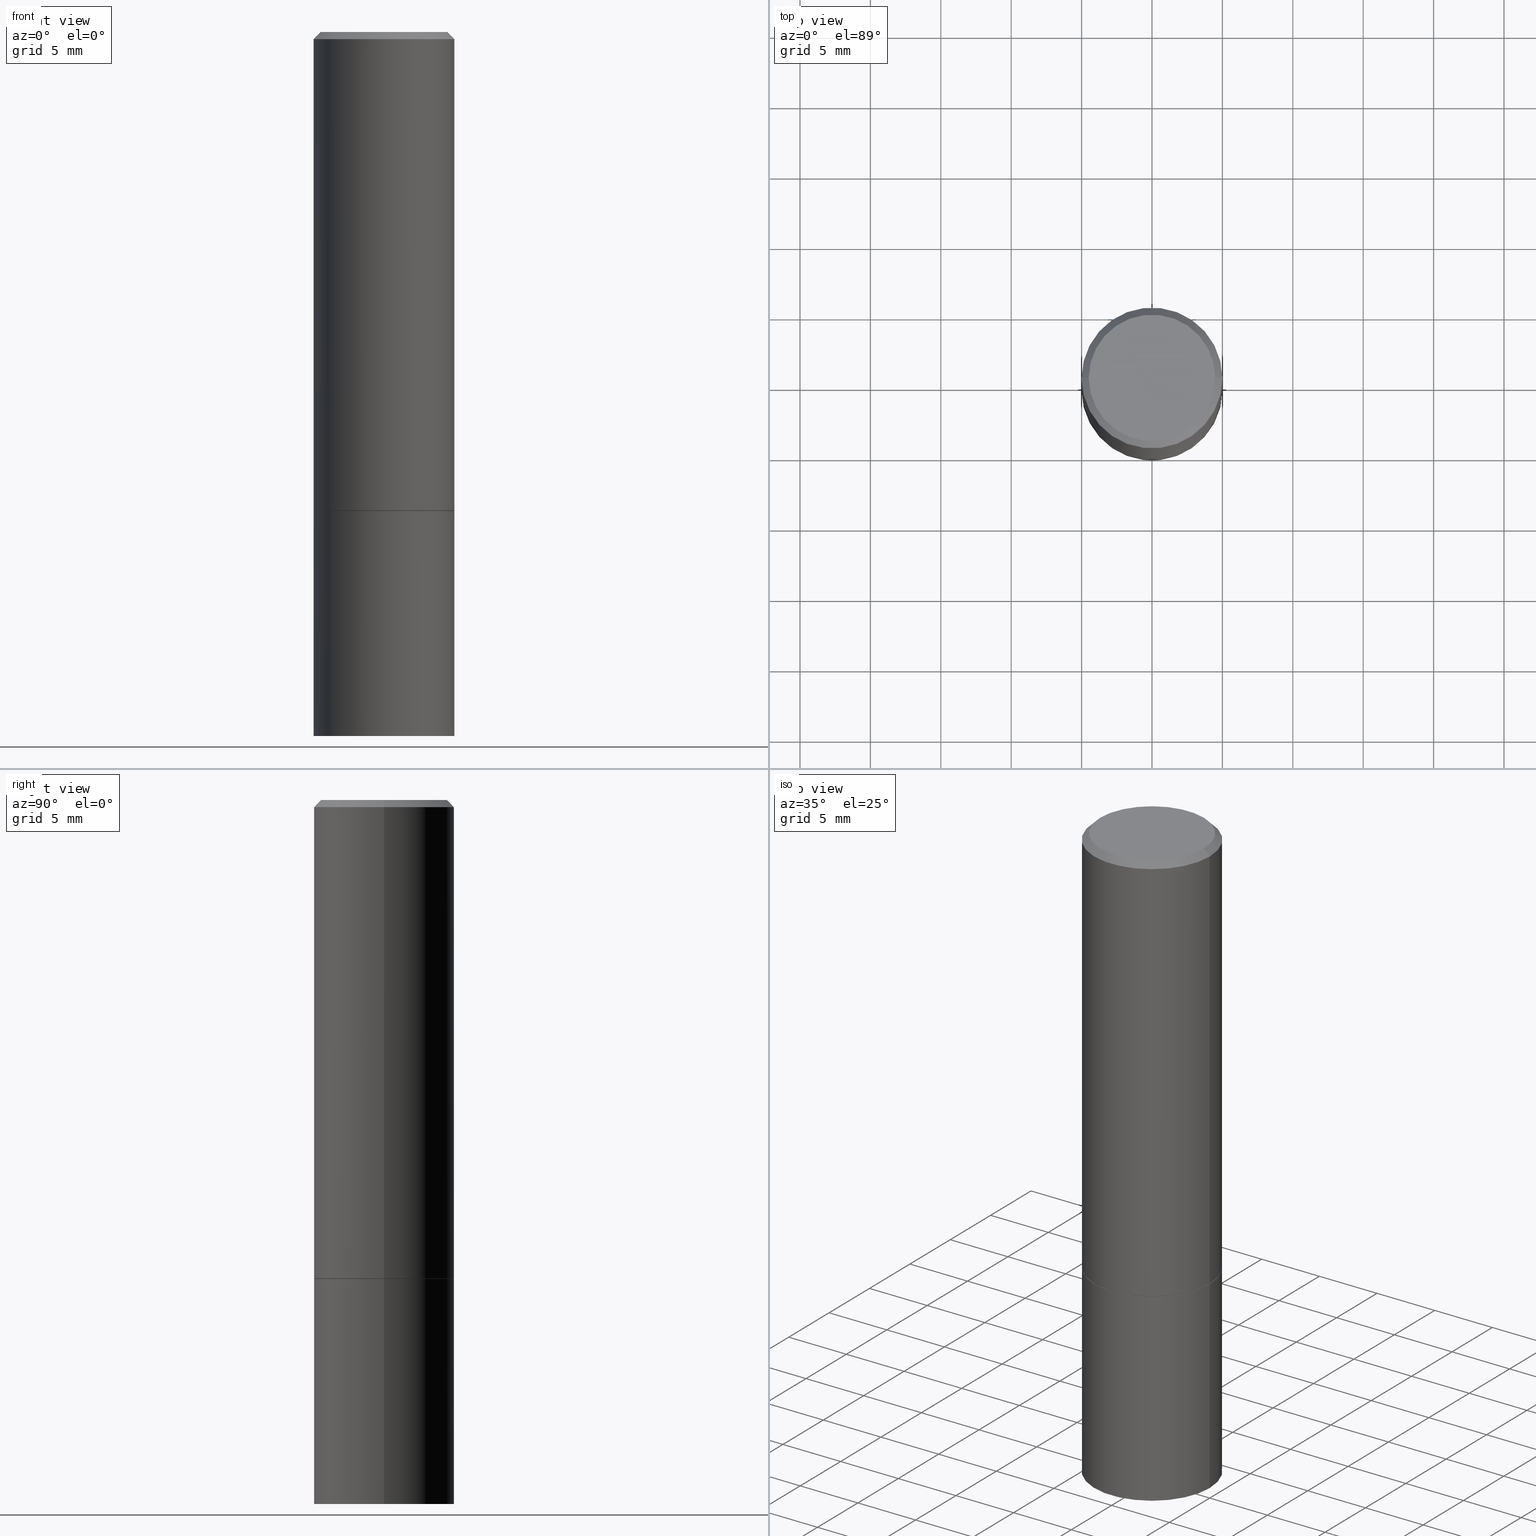
[diagram: canonical four-view strip — front | top / right | iso, engineering-drawing reading convention]
A machine part, canonical four-view strip (front | top / right | iso — engineering-drawing reading convention). The complete STEP part file that produces these views, byte-faithful:
ISO-10303-21;
HEADER;
FILE_DESCRIPTION (( 'STEP AP203' ),
    '1' );
FILE_NAME ('49275.STEP',
    '2024-02-28T17:23:51',
    ( '' ),
    ( '' ),
    'SwSTEP 2.0',
    'SolidWorks 2023',
    '' );
FILE_SCHEMA (( 'CONFIG_CONTROL_DESIGN' ));
ENDSEC;

DATA;
#1 = CARTESIAN_POINT ( 'NONE',  ( 3.273504543959423913E-29, -4.673696920175434737E-15, -1.338600000000000012 ) ) ;
#2 = EDGE_CURVE ( 'NONE', #134, #304, #193, .T. ) ;
#3 = CARTESIAN_POINT ( 'NONE',  ( 3.271059075153238310E-29, -4.670205438836591729E-15, -1.337599999999999900 ) ) ;
#4 = DIRECTION ( 'NONE',  ( 1.000000000000000000, -6.982962677686266711E-15, 0.000000000000000000 ) ) ;
#5 = ORIENTED_EDGE ( 'NONE', *, *, #6, .F. ) ;
#6 = EDGE_CURVE ( 'NONE', #256, #192, #27, .T. ) ;
#7 = CARTESIAN_POINT ( 'NONE',  ( 0.1768499999999998407, -1.316798864272041155E-15, 8.922390245354091239E-30 ) ) ;
#8 = AXIS2_PLACEMENT_3D ( 'NONE', #334, #84, #306 ) ;
#9 = CIRCLE ( 'NONE', #241, 0.1968499999999998307 ) ;
#10 = LINE ( 'NONE', #268, #176 ) ;
#11 = ADVANCED_BREP_SHAPE_REPRESENTATION ( '49275', ( #324, #213, #363 ), #286 ) ;
#12 = CARTESIAN_POINT ( 'NONE',  ( 4.890937612370284544E-31, -6.982962677686307633E-17, -0.02000000000000004552 ) ) ;
#13 = DIRECTION ( 'NONE',  ( 0.000000000000000000, 0.000000000000000000, 1.000000000000000000 ) ) ;
#14 = FACE_OUTER_BOUND ( 'NONE', #284, .T. ) ;
#15 = VECTOR ( 'NONE', #240, 39.37007874015748143 ) ;
#16 = DIRECTION ( 'NONE',  ( -1.000000000000000000, 6.982962677686265922E-15, -4.876176775795935793E-29 ) ) ;
#17 = DIRECTION ( 'NONE',  ( 1.000000000000000000, -6.982962677686268288E-15, 0.000000000000000000 ) ) ;
#18 = AXIS2_PLACEMENT_3D ( 'NONE', #150, #294, #35 ) ;
#19 = ORIENTED_EDGE ( 'NONE', *, *, #2, .T. ) ;
#20 = EDGE_CURVE ( 'NONE', #359, #111, #204, .T. ) ;
#21 = CYLINDRICAL_SURFACE ( 'NONE', #81, 0.1968500000000000250 ) ;
#22 = CARTESIAN_POINT ( 'NONE',  ( 4.813905344975441835E-29, -6.872981015512731707E-15, -1.968500000000000139 ) ) ;
#23 = APPROVAL_PERSON_ORGANIZATION ( #301, #148, #186 ) ;
#24 = CYLINDRICAL_SURFACE ( 'NONE', #8, 0.1968500000000000250 ) ;
#25 = ORIENTED_EDGE ( 'NONE', *, *, #51, .T. ) ;
#26 = DIRECTION ( 'NONE',  ( 2.445468806185136597E-29, -3.491481338843145583E-15, -1.000000000000000000 ) ) ;
#27 = CIRCLE ( 'NONE', #155, 0.1968500000000000250 ) ;
#28 = LOCAL_TIME ( 12, 23, 51.00000000000000000, #108 ) ;
#29 = LOCAL_TIME ( 12, 23, 51.00000000000000000, #230 ) ;
#30 = LINE ( 'NONE', #266, #109 ) ;
#31 = ADVANCED_FACE ( 'NONE', ( #309 ), #21, .T. ) ;
#32 = ORIENTED_EDGE ( 'NONE', *, *, #91, .T. ) ;
#33 = DIRECTION ( 'NONE',  ( 2.438088387897960049E-29, -3.491481338843145188E-15, -1.000000000000000000 ) ) ;
#34 = PRODUCT_DEFINITION_SHAPE ( 'NONE', 'NONE',  #232 ) ;
#35 = DIRECTION ( 'NONE',  ( 1.000000000000000000, -6.982962677686266711E-15, 4.876176775795935793E-29 ) ) ;
#36 = AXIS2_PLACEMENT_3D ( 'NONE', #59, #296, #205 ) ;
#37 = DIRECTION ( 'NONE',  ( -2.445468806185136877E-29, 3.491481338843145188E-15, 1.000000000000000000 ) ) ;
#38 = ORIENTED_EDGE ( 'NONE', *, *, #51, .F. ) ;
#39 = PERSON_AND_ORGANIZATION ( #146, #282 ) ;
#40 = ADVANCED_FACE ( 'NONE', ( #170 ), #227, .T. ) ;
#41 = ORIENTED_EDGE ( 'NONE', *, *, #265, .F. ) ;
#42 = PERSON_AND_ORGANIZATION ( #146, #282 ) ;
#43 = FACE_OUTER_BOUND ( 'NONE', #215, .T. ) ;
#44 = COORDINATED_UNIVERSAL_TIME_OFFSET ( 5, 0, .BEHIND. ) ;
#45 = VECTOR ( 'NONE', #139, 39.37007874015748143 ) ;
#46 = DIRECTION ( 'NONE',  ( -2.438088387897960049E-29, 3.491481338843145188E-15, 1.000000000000000000 ) ) ;
#47 = AXIS2_PLACEMENT_3D ( 'NONE', #121, #349, #147 ) ;
#48 = CC_DESIGN_APPROVAL ( #322, ( #210 ) ) ;
#49 = EDGE_LOOP ( 'NONE', ( #201, #226 ) ) ;
#50 = SECURITY_CLASSIFICATION_LEVEL ( 'unclassified' ) ;
#51 = EDGE_CURVE ( 'NONE', #86, #305, #287, .T. ) ;
#52 = AXIS2_PLACEMENT_3D ( 'NONE', #175, #293, #208 ) ;
#53 = CARTESIAN_POINT ( 'NONE',  ( 0.1968499999999998307, -1.420318657638187938E-15, -0.02000000000000004552 ) ) ;
#54 = CARTESIAN_POINT ( 'NONE',  ( 4.813905344975441835E-29, -6.872981015512731707E-15, -1.968500000000000139 ) ) ;
#55 = ORIENTED_EDGE ( 'NONE', *, *, #333, .F. ) ;
#56 = AXIS2_PLACEMENT_3D ( 'NONE', #133, #250, #17 ) ;
#57 = ADVANCED_FACE ( 'NONE', ( #229 ), #24, .T. ) ;
#58 = PRODUCT ( '49275', '49275', '', ( #77 ) ) ;
#59 = CARTESIAN_POINT ( 'NONE',  ( 0.000000000000000000, 0.000000000000000000, 0.000000000000000000 ) ) ;
#60 = CC_DESIGN_PERSON_AND_ORGANIZATION_ASSIGNMENT ( #358, #74, ( #149 ) ) ;
#61 = DIRECTION ( 'NONE',  ( 1.000000000000000000, -6.982962677686268288E-15, 0.000000000000000000 ) ) ;
#62 = EDGE_LOOP ( 'NONE', ( #318, #122, #243, #172 ) ) ;
#63 = AXIS2_PLACEMENT_3D ( 'NONE', #168, #310, #258 ) ;
#64 = CIRCLE ( 'NONE', #315, 0.1768499999999998407 ) ;
#65 = CARTESIAN_POINT ( 'NONE',  ( 1.234936949548815012E-15, 0.1768499999999998407, -6.174684747744098725E-16 ) ) ;
#66 = DIRECTION ( 'NONE',  ( -1.000000000000000000, 6.982962677686266711E-15, 0.000000000000000000 ) ) ;
#67 = LINE ( 'NONE', #126, #216 ) ;
#68 = ORIENTED_EDGE ( 'NONE', *, *, #217, .T. ) ;
#69 = EDGE_CURVE ( 'NONE', #192, #256, #328, .T. ) ;
#70 = CALENDAR_DATE ( 2024, 28, 2 ) ;
#71 = CARTESIAN_POINT ( 'NONE',  ( 3.273504543959423913E-29, -4.673696920175434737E-15, -1.338600000000000012 ) ) ;
#72 = ORIENTED_EDGE ( 'NONE', *, *, #265, .T. ) ;
#73 = CC_DESIGN_PERSON_AND_ORGANIZATION_ASSIGNMENT ( #279, #159, ( #210 ) ) ;
#74 = PERSON_AND_ORGANIZATION_ROLE ( 'design_supplier' ) ;
#75 = CARTESIAN_POINT ( 'NONE',  ( 0.1968500000000000250, -8.247577218615273316E-15, -1.968500000000000139 ) ) ;
#76 = AXIS2_PLACEMENT_3D ( 'NONE', #65, #33, #152 ) ;
#77 = MECHANICAL_CONTEXT ( 'NONE', #343, 'mechanical' ) ;
#78 = CARTESIAN_POINT ( 'NONE',  ( 0.1968500000000000250, -6.048293123277976345E-15, -1.338600000000000012 ) ) ;
#79 = ADVANCED_FACE ( 'NONE', ( #366 ), #336, .T. ) ;
#80 = APPROVAL_DATE_TIME ( #198, #322 ) ;
#81 = AXIS2_PLACEMENT_3D ( 'NONE', #166, #285, #145 ) ;
#82 = CONICAL_SURFACE ( 'NONE', #112, 0.1958499999999999963, 0.7853981633974311816 ) ;
#83 = DIRECTION ( 'NONE',  ( -0.7071067811865465735, 2.468850131082246805E-15, -0.7071067811865484609 ) ) ;
#84 = DIRECTION ( 'NONE',  ( -2.445468806185136597E-29, 3.491481338843145583E-15, 1.000000000000000000 ) ) ;
#85 = APPROVAL_STATUS ( 'not_yet_approved' ) ;
#86 = VERTEX_POINT ( 'NONE', #7 ) ;
#87 = ORIENTED_EDGE ( 'NONE', *, *, #178, .T. ) ;
#88 = AXIS2_PLACEMENT_3D ( 'NONE', #129, #219, #16 ) ;
#89 = CARTESIAN_POINT ( 'NONE',  ( 0.1968499999999998307, -1.420318657638187938E-15, -0.02000000000000004552 ) ) ;
#90 = VERTEX_POINT ( 'NONE', #245 ) ;
#91 = EDGE_CURVE ( 'NONE', #305, #111, #9, .T. ) ;
#92 = CARTESIAN_POINT ( 'NONE',  ( -0.1968500000000000250, -4.374635592500326618E-15, -1.968500000000000139 ) ) ;
#93 = ORIENTED_EDGE ( 'NONE', *, *, #91, .F. ) ;
#94 = PLANE ( 'NONE',  #52 ) ;
#95 = ORIENTED_EDGE ( 'NONE', *, *, #300, .T. ) ;
#96 = CONICAL_SURFACE ( 'NONE', #56, 0.1958499999999999963, 0.7853981633974311816 ) ;
#97 = DIRECTION ( 'NONE',  ( -2.445468806185136597E-29, 3.491481338843145583E-15, 1.000000000000000000 ) ) ;
#98 = LINE ( 'NONE', #123, #15 ) ;
#99 = EDGE_CURVE ( 'NONE', #86, #359, #131, .T. ) ;
#100 = EDGE_LOOP ( 'NONE', ( #196, #288, #115, #117 ) ) ;
#101 = CYLINDRICAL_SURFACE ( 'NONE', #18, 0.1968499999999999417 ) ;
#102 = EDGE_LOOP ( 'NONE', ( #345, #25, #32, #181 ) ) ;
#103 = CIRCLE ( 'NONE', #228, 0.1968500000000000527 ) ;
#104 = PERSON_AND_ORGANIZATION ( #146, #282 ) ;
#105 = ORIENTED_EDGE ( 'NONE', *, *, #225, .T. ) ;
#106 = APPROVAL ( #274, 'UNSPECIFIED' ) ;
#107 =( CONVERSION_BASED_UNIT ( 'INCH', #244 ) LENGTH_UNIT ( ) NAMED_UNIT ( #220 ) );
#108 = COORDINATED_UNIVERSAL_TIME_OFFSET ( 5, 0, .BEHIND. ) ;
#109 = VECTOR ( 'NONE', #239, 39.37007874015748143 ) ;
#110 = ORIENTED_EDGE ( 'NONE', *, *, #300, .F. ) ;
#111 = VERTEX_POINT ( 'NONE', #316 ) ;
#112 = AXIS2_PLACEMENT_3D ( 'NONE', #341, #127, #61 ) ;
#113 = DIRECTION ( 'NONE',  ( -2.445468806185136597E-29, 3.491481338843145583E-15, 1.000000000000000000 ) ) ;
#114 = CC_DESIGN_PERSON_AND_ORGANIZATION_ASSIGNMENT ( #320, #218, ( #232 ) ) ;
#115 = ORIENTED_EDGE ( 'NONE', *, *, #207, .T. ) ;
#116 = CARTESIAN_POINT ( 'NONE',  ( 3.273504543959423913E-29, -4.673696920175434737E-15, -1.338600000000000012 ) ) ;
#117 = ORIENTED_EDGE ( 'NONE', *, *, #153, .F. ) ;
#118 = LOCAL_TIME ( 12, 23, 51.00000000000000000, #44 ) ;
#119 = CARTESIAN_POINT ( 'NONE',  ( -0.1768499999999998407, 1.269851762937246464E-15, -8.758475317130876682E-30 ) ) ;
#120 = CARTESIAN_POINT ( 'NONE',  ( 4.890937612370284544E-31, -6.982962677686307633E-17, -0.02000000000000004552 ) ) ;
#121 = CARTESIAN_POINT ( 'NONE',  ( 3.273504543959423913E-29, -4.673696920175434737E-15, -1.338600000000000012 ) ) ;
#122 = ORIENTED_EDGE ( 'NONE', *, *, #69, .T. ) ;
#123 = CARTESIAN_POINT ( 'NONE',  ( -0.1968500000000000250, 1.398703375343757393E-15, -9.682923725166783677E-30 ) ) ;
#124 = ORIENTED_EDGE ( 'NONE', *, *, #333, .T. ) ;
#125 = ADVANCED_FACE ( 'NONE', ( #350 ), #101, .T. ) ;
#126 = CARTESIAN_POINT ( 'NONE',  ( -0.1958499999999999963, -3.282098972189277957E-15, -1.338600000000000012 ) ) ;
#127 = DIRECTION ( 'NONE',  ( -2.445468806185136597E-29, 3.491481338843145583E-15, 1.000000000000000000 ) ) ;
#128 = APPROVAL_ROLE ( '' ) ;
#129 = CARTESIAN_POINT ( 'NONE',  ( 1.374596203102574149E-15, 0.1968499999999953343, -1.338600000000000900 ) ) ;
#130 = EDGE_CURVE ( 'NONE', #111, #305, #194, .T. ) ;
#131 = CIRCLE ( 'NONE', #36, 0.1768499999999998407 ) ;
#132 = APPLICATION_PROTOCOL_DEFINITION ( 'international standard', 'config_control_design', 1994, #343 ) ;
#133 = CARTESIAN_POINT ( 'NONE',  ( 3.273504543959423913E-29, -4.673696920175434737E-15, -1.338600000000000012 ) ) ;
#134 = VERTEX_POINT ( 'NONE', #236 ) ;
#135 = DATE_AND_TIME ( #352, #118 ) ;
#136 = COORDINATED_UNIVERSAL_TIME_OFFSET ( 5, 0, .BEHIND. ) ;
#137 = CARTESIAN_POINT ( 'NONE',  ( 0.1968499999999999417, -1.374596203102541214E-15, 9.598753983154296654E-30 ) ) ;
#138 = SHAPE_DEFINITION_REPRESENTATION ( #34, #11 ) ;
#139 = DIRECTION ( 'NONE',  ( 0.7071067811865465735, -7.319954787623252890E-15, -0.7071067811865484609 ) ) ;
#140 = ADVANCED_FACE ( 'NONE', ( #273 ), #337, .T. ) ;
#141 = CLOSED_SHELL ( 'NONE', ( #289, #125, #40, #140, #79, #173, #259, #222 ) ) ;
#142 = AXIS2_PLACEMENT_3D ( 'NONE', #347, #299, #224 ) ;
#143 = EDGE_LOOP ( 'NONE', ( #72, #362 ) ) ;
#144 = DIRECTION ( 'NONE',  ( -2.445468806185136597E-29, 3.491481338843145583E-15, 1.000000000000000000 ) ) ;
#145 = DIRECTION ( 'NONE',  ( 1.000000000000000000, -6.982962677686265922E-15, 4.876176775795935793E-29 ) ) ;
#146 = PERSON ( 'UNSPECIFIED', 'UNSPECIFIED', 'UNSPECIFIED', ('UNSPECIFIED'), ('UNSPECIFIED'), ('UNSPECIFIED') ) ;
#147 = DIRECTION ( 'NONE',  ( 1.000000000000000000, -6.982962677686267499E-15, 0.000000000000000000 ) ) ;
#148 = APPROVAL ( #356, 'UNSPECIFIED' ) ;
#149 = PRODUCT_DEFINITION_FORMATION_WITH_SPECIFIED_SOURCE ( 'ANY', '', #58, .NOT_KNOWN. ) ;
#150 = CARTESIAN_POINT ( 'NONE',  ( 0.000000000000000000, 0.000000000000000000, 0.000000000000000000 ) ) ;
#151 = EDGE_LOOP ( 'NONE', ( #281, #283, #95, #342 ) ) ;
#152 = DIRECTION ( 'NONE',  ( -1.000000000000000000, 6.982962677686265922E-15, -4.876176775795935793E-29 ) ) ;
#153 = EDGE_CURVE ( 'NONE', #304, #134, #103, .T. ) ;
#154 = CARTESIAN_POINT ( 'NONE',  ( -0.1958499999999999963, -3.276800517841055949E-15, -1.338600000000000012 ) ) ;
#155 = AXIS2_PLACEMENT_3D ( 'NONE', #54, #113, #331 ) ;
#156 = AXIS2_PLACEMENT_3D ( 'NONE', #1, #312, #174 ) ;
#157 = DIRECTION ( 'NONE',  ( -0.7071067811865353603, 7.493145998870309984E-15, 0.7071067811865595631 ) ) ;
#158 = EDGE_CURVE ( 'NONE', #256, #251, #264, .T. ) ;
#159 = PERSON_AND_ORGANIZATION_ROLE ( 'classification_officer' ) ;
#160 = UNCERTAINTY_MEASURE_WITH_UNIT (LENGTH_MEASURE( 1.000000000000000082E-05 ), #107, 'distance_accuracy_value', 'NONE');
#161 = CIRCLE ( 'NONE', #254, 0.1958499999999999963 ) ;
#162 = PLANE ( 'NONE',  #184 ) ;
#163 = CARTESIAN_POINT ( 'NONE',  ( 0.000000000000000000, 0.000000000000000000, 0.000000000000000000 ) ) ;
#164 = EDGE_CURVE ( 'NONE', #165, #304, #67, .T. ) ;
#165 = VERTEX_POINT ( 'NONE', #154 ) ;
#166 = CARTESIAN_POINT ( 'NONE',  ( 0.000000000000000000, 0.000000000000000000, 0.000000000000000000 ) ) ;
#167 = ORIENTED_EDGE ( 'NONE', *, *, #130, .T. ) ;
#168 = CARTESIAN_POINT ( 'NONE',  ( 4.890937612370284544E-31, -6.982962677686307633E-17, -0.02000000000000004552 ) ) ;
#169 = CLOSED_SHELL ( 'NONE', ( #57, #195, #277, #31 ) ) ;
#170 = FACE_OUTER_BOUND ( 'NONE', #102, .T. ) ;
#171 = DESIGN_CONTEXT ( 'detailed design', #238, 'design' ) ;
#172 = ORIENTED_EDGE ( 'NONE', *, *, #178, .F. ) ;
#173 = ADVANCED_FACE ( 'NONE', ( #211 ), #82, .T. ) ;
#174 = DIRECTION ( 'NONE',  ( 1.000000000000000000, -6.982962677686267499E-15, 0.000000000000000000 ) ) ;
#175 = CARTESIAN_POINT ( 'NONE',  ( 1.374596203102589532E-15, 0.1968499999999931416, -1.968500000000000805 ) ) ;
#176 = VECTOR ( 'NONE', #292, 39.37007874015748854 ) ;
#177 = DIRECTION ( 'NONE',  ( -2.445468806185136597E-29, 3.491481338843145583E-15, 1.000000000000000000 ) ) ;
#178 = EDGE_CURVE ( 'NONE', #365, #251, #257, .T. ) ;
#179 = EDGE_LOOP ( 'NONE', ( #19, #68, #93, #110 ) ) ;
#180 = FACE_OUTER_BOUND ( 'NONE', #339, .T. ) ;
#181 = ORIENTED_EDGE ( 'NONE', *, *, #20, .F. ) ;
#182 = CARTESIAN_POINT ( 'NONE',  ( 0.000000000000000000, 0.000000000000000000, 0.000000000000000000 ) ) ;
#183 = AXIS2_PLACEMENT_3D ( 'NONE', #255, #360, #335 ) ;
#184 = AXIS2_PLACEMENT_3D ( 'NONE', #71, #46, #275 ) ;
#185 = APPROVAL_DATE_TIME ( #323, #106 ) ;
#186 = APPROVAL_ROLE ( '' ) ;
#187 = AXIS2_PLACEMENT_3D ( 'NONE', #22, #144, #260 ) ;
#188 = FACE_OUTER_BOUND ( 'NONE', #49, .T. ) ;
#189 = CC_DESIGN_PERSON_AND_ORGANIZATION_ASSIGNMENT ( #42, #354, ( #149 ) ) ;
#190 = DIRECTION ( 'NONE',  ( 1.000000000000000000, 0.000000000000000000, 0.000000000000000000 ) ) ;
#191 = CARTESIAN_POINT ( 'NONE',  ( 0.000000000000000000, 0.000000000000000000, 0.000000000000000000 ) ) ;
#192 = VERTEX_POINT ( 'NONE', #92 ) ;
#193 = CIRCLE ( 'NONE', #183, 0.1968500000000000527 ) ;
#194 = CIRCLE ( 'NONE', #200, 0.1968499999999998307 ) ;
#195 = ADVANCED_FACE ( 'NONE', ( #180 ), #94, .T. ) ;
#196 = ORIENTED_EDGE ( 'NONE', *, *, #164, .F. ) ;
#197 = ORIENTED_EDGE ( 'NONE', *, *, #207, .F. ) ;
#198 = DATE_AND_TIME ( #364, #29 ) ;
#199 = CARTESIAN_POINT ( 'NONE',  ( -0.1968499999999998307, 1.304766576325677324E-15, -0.02000000000000004552 ) ) ;
#200 = AXIS2_PLACEMENT_3D ( 'NONE', #120, #314, #4 ) ;
#201 = ORIENTED_EDGE ( 'NONE', *, *, #351, .F. ) ;
#202 = CC_DESIGN_DATE_AND_TIME_ASSIGNMENT ( #297, #249, ( #232 ) ) ;
#203 = DIRECTION ( 'NONE',  ( 1.000000000000000000, -6.982962677686268288E-15, 0.000000000000000000 ) ) ;
#204 = LINE ( 'NONE', #199, #209 ) ;
#205 = DIRECTION ( 'NONE',  ( 1.000000000000000000, -6.982962677686266711E-15, 4.876176775795936353E-29 ) ) ;
#206 = EDGE_LOOP ( 'NONE', ( #38, #41, #311, #167 ) ) ;
#207 = EDGE_CURVE ( 'NONE', #90, #134, #10, .T. ) ;
#208 = DIRECTION ( 'NONE',  ( -1.000000000000000000, 6.982962677686265922E-15, -4.876176775795935793E-29 ) ) ;
#209 = VECTOR ( 'NONE', #83, 39.37007874015748143 ) ;
#210 = SECURITY_CLASSIFICATION ( '', '', #50 ) ;
#211 = FACE_OUTER_BOUND ( 'NONE', #100, .T. ) ;
#212 = DIRECTION ( 'NONE',  ( 1.000000000000000000, -6.982962677686266711E-15, 4.876176775795935793E-29 ) ) ;
#213 = MANIFOLD_SOLID_BREP ( 'Body-Move/Copy2[2]', #141 ) ;
#214 =( NAMED_UNIT ( * ) PLANE_ANGLE_UNIT ( ) SI_UNIT ( $, .RADIAN. ) );
#215 = EDGE_LOOP ( 'NONE', ( #234, #348, #295, #197 ) ) ;
#216 = VECTOR ( 'NONE', #157, 39.37007874015748854 ) ;
#217 = EDGE_CURVE ( 'NONE', #304, #111, #30, .T. ) ;
#218 = PERSON_AND_ORGANIZATION_ROLE ( 'creator' ) ;
#219 = DIRECTION ( 'NONE',  ( 2.438088387897960049E-29, -3.491481338843145188E-15, -1.000000000000000000 ) ) ;
#220 = DIMENSIONAL_EXPONENTS ( 1.000000000000000000, 0.000000000000000000, 0.000000000000000000, 0.000000000000000000, 0.000000000000000000, 0.000000000000000000, 0.000000000000000000 ) ;
#221 = CALENDAR_DATE ( 2024, 28, 2 ) ;
#222 = ADVANCED_FACE ( 'NONE', ( #344 ), #242, .F. ) ;
#223 = DATE_TIME_ROLE ( 'classification_date' ) ;
#224 = DIRECTION ( 'NONE',  ( 1.000000000000000000, -6.982962677686268288E-15, 0.000000000000000000 ) ) ;
#225 = EDGE_CURVE ( 'NONE', #192, #365, #98, .T. ) ;
#226 = ORIENTED_EDGE ( 'NONE', *, *, #246, .F. ) ;
#227 = CONICAL_SURFACE ( 'NONE', #63, 0.1968499999999998307, 0.7853981633974469467 ) ;
#228 = AXIS2_PLACEMENT_3D ( 'NONE', #3, #97, #319 ) ;
#229 = FACE_OUTER_BOUND ( 'NONE', #270, .T. ) ;
#230 = COORDINATED_UNIVERSAL_TIME_OFFSET ( 5, 0, .BEHIND. ) ;
#231 = ORIENTED_EDGE ( 'NONE', *, *, #158, .F. ) ;
#232 = PRODUCT_DEFINITION ( 'UNKNOWN', '', #149, #171 ) ;
#233 = DIRECTION ( 'NONE',  ( -2.445468806185136597E-29, 3.491481338843145583E-15, 1.000000000000000000 ) ) ;
#234 = ORIENTED_EDGE ( 'NONE', *, *, #351, .T. ) ;
#235 = CARTESIAN_POINT ( 'NONE',  ( -0.1968500000000000250, -4.374635592500326618E-15, -1.338600000000000012 ) ) ;
#236 = CARTESIAN_POINT ( 'NONE',  ( 0.1968500000000000527, -6.044801641939134127E-15, -1.337599999999999900 ) ) ;
#237 = ORIENTED_EDGE ( 'NONE', *, *, #6, .T. ) ;
#238 = APPLICATION_CONTEXT ( 'configuration controlled 3d designs of mechanical parts and assemblies' ) ;
#239 = DIRECTION ( 'NONE',  ( -2.445468806185136877E-29, 3.491481338843145188E-15, 1.000000000000000000 ) ) ;
#240 = DIRECTION ( 'NONE',  ( -2.445468806185136877E-29, 3.491481338843145188E-15, 1.000000000000000000 ) ) ;
#241 = AXIS2_PLACEMENT_3D ( 'NONE', #12, #177, #290 ) ;
#242 = PLANE ( 'NONE',  #76 ) ;
#243 = ORIENTED_EDGE ( 'NONE', *, *, #158, .T. ) ;
#244 = LENGTH_MEASURE_WITH_UNIT ( LENGTH_MEASURE( 0.02539999999999999897 ), #325 );
#245 = CARTESIAN_POINT ( 'NONE',  ( 0.1958499999999999963, -6.041310160600290331E-15, -1.338600000000000012 ) ) ;
#246 = EDGE_CURVE ( 'NONE', #165, #90, #329, .T. ) ;
#247 = APPLICATION_PROTOCOL_DEFINITION ( 'international standard', 'config_control_design', 1994, #238 ) ;
#248 = CC_DESIGN_APPROVAL ( #106, ( #149 ) ) ;
#249 = DATE_TIME_ROLE ( 'creation_date' ) ;
#250 = DIRECTION ( 'NONE',  ( -2.445468806185136597E-29, 3.491481338843145583E-15, 1.000000000000000000 ) ) ;
#251 = VERTEX_POINT ( 'NONE', #78 ) ;
#252 = LINE ( 'NONE', #137, #346 ) ;
#253 =( NAMED_UNIT ( * ) SI_UNIT ( $, .STERADIAN. ) SOLID_ANGLE_UNIT ( ) );
#254 = AXIS2_PLACEMENT_3D ( 'NONE', #116, #233, #203 ) ;
#255 = CARTESIAN_POINT ( 'NONE',  ( 3.271059075153238310E-29, -4.670205438836591729E-15, -1.337599999999999900 ) ) ;
#256 = VERTEX_POINT ( 'NONE', #75 ) ;
#257 = CIRCLE ( 'NONE', #47, 0.1968500000000000250 ) ;
#258 = DIRECTION ( 'NONE',  ( -1.000000000000000000, 6.982962677686266711E-15, 0.000000000000000000 ) ) ;
#259 = ADVANCED_FACE ( 'NONE', ( #188 ), #162, .F. ) ;
#260 = DIRECTION ( 'NONE',  ( 1.000000000000000000, -6.982962677686267499E-15, 0.000000000000000000 ) ) ;
#261 = ORIENTED_EDGE ( 'NONE', *, *, #69, .F. ) ;
#262 = CC_DESIGN_APPROVAL ( #148, ( #232 ) ) ;
#263 = LOCAL_TIME ( 12, 23, 51.00000000000000000, #136 ) ;
#264 = LINE ( 'NONE', #313, #332 ) ;
#265 = EDGE_CURVE ( 'NONE', #359, #86, #64, .T. ) ;
#266 = CARTESIAN_POINT ( 'NONE',  ( -0.1968499999999999417, 1.398703375343756802E-15, -9.682923725166779474E-30 ) ) ;
#267 = DIRECTION ( 'NONE',  ( -2.445468806185136597E-29, 3.491481338843145583E-15, 1.000000000000000000 ) ) ;
#268 = CARTESIAN_POINT ( 'NONE',  ( 0.1958499999999999963, -6.041310160600290331E-15, -1.338600000000000012 ) ) ;
#269 = CIRCLE ( 'NONE', #156, 0.1968500000000000250 ) ;
#270 = EDGE_LOOP ( 'NONE', ( #237, #105, #55, #231 ) ) ;
#271 = APPROVAL_PERSON_ORGANIZATION ( #308, #322, #330 ) ;
#272 = APPROVAL_DATE_TIME ( #135, #148 ) ;
#273 = FACE_OUTER_BOUND ( 'NONE', #206, .T. ) ;
#274 = APPROVAL_STATUS ( 'not_yet_approved' ) ;
#275 = DIRECTION ( 'NONE',  ( 1.000000000000000000, -6.982962677686265922E-15, 4.876176775795935793E-29 ) ) ;
#276 = DATE_AND_TIME ( #298, #263 ) ;
#277 = ADVANCED_FACE ( 'NONE', ( #14 ), #280, .F. ) ;
#278 = PERSON_AND_ORGANIZATION_ROLE ( 'design_owner' ) ;
#279 = PERSON_AND_ORGANIZATION ( #146, #282 ) ;
#280 = PLANE ( 'NONE',  #88 ) ;
#281 = ORIENTED_EDGE ( 'NONE', *, *, #217, .F. ) ;
#282 = ORGANIZATION ( 'UNSPECIFIED', 'UNSPECIFIED', '' ) ;
#283 = ORIENTED_EDGE ( 'NONE', *, *, #153, .T. ) ;
#284 = EDGE_LOOP ( 'NONE', ( #124, #87 ) ) ;
#285 = DIRECTION ( 'NONE',  ( -2.445468806185136597E-29, 3.491481338843145583E-15, 1.000000000000000000 ) ) ;
#286 =( GEOMETRIC_REPRESENTATION_CONTEXT ( 3 ) GLOBAL_UNCERTAINTY_ASSIGNED_CONTEXT ( ( #160 ) ) GLOBAL_UNIT_ASSIGNED_CONTEXT ( ( #107, #214, #253 ) ) REPRESENTATION_CONTEXT ( 'NONE', 'WORKASPACE' ) );
#287 = LINE ( 'NONE', #53, #45 ) ;
#288 = ORIENTED_EDGE ( 'NONE', *, *, #246, .T. ) ;
#289 = ADVANCED_FACE ( 'NONE', ( #43 ), #96, .T. ) ;
#290 = DIRECTION ( 'NONE',  ( 1.000000000000000000, -6.982962677686266711E-15, 0.000000000000000000 ) ) ;
#291 = AXIS2_PLACEMENT_3D ( 'NONE', #182, #267, #212 ) ;
#292 = DIRECTION ( 'NONE',  ( 0.7071067811865353603, -2.468850131082130054E-15, 0.7071067811865595631 ) ) ;
#293 = DIRECTION ( 'NONE',  ( 2.438088387897960049E-29, -3.491481338843145188E-15, -1.000000000000000000 ) ) ;
#294 = DIRECTION ( 'NONE',  ( -2.445468806185136597E-29, 3.491481338843145583E-15, 1.000000000000000000 ) ) ;
#295 = ORIENTED_EDGE ( 'NONE', *, *, #2, .F. ) ;
#296 = DIRECTION ( 'NONE',  ( -2.445468806185136597E-29, 3.491481338843145583E-15, 1.000000000000000000 ) ) ;
#297 = DATE_AND_TIME ( #70, #321 ) ;
#298 = CALENDAR_DATE ( 2024, 28, 2 ) ;
#299 = DIRECTION ( 'NONE',  ( -2.445468806185136597E-29, 3.491481338843145583E-15, 1.000000000000000000 ) ) ;
#300 = EDGE_CURVE ( 'NONE', #134, #305, #252, .T. ) ;
#301 = PERSON_AND_ORGANIZATION ( #146, #282 ) ;
#302 = AXIS2_PLACEMENT_3D ( 'NONE', #317, #26, #66 ) ;
#303 = DIRECTION ( 'NONE',  ( -2.445468806185136597E-29, 3.491481338843145583E-15, 1.000000000000000000 ) ) ;
#304 = VERTEX_POINT ( 'NONE', #357 ) ;
#305 = VERTEX_POINT ( 'NONE', #89 ) ;
#306 = DIRECTION ( 'NONE',  ( 1.000000000000000000, -6.982962677686265922E-15, 4.876176775795935793E-29 ) ) ;
#307 = CC_DESIGN_DATE_AND_TIME_ASSIGNMENT ( #276, #223, ( #210 ) ) ;
#308 = PERSON_AND_ORGANIZATION ( #146, #282 ) ;
#309 = FACE_OUTER_BOUND ( 'NONE', #62, .T. ) ;
#310 = DIRECTION ( 'NONE',  ( 2.445468806185136597E-29, -3.491481338843145583E-15, -1.000000000000000000 ) ) ;
#311 = ORIENTED_EDGE ( 'NONE', *, *, #20, .T. ) ;
#312 = DIRECTION ( 'NONE',  ( -2.445468806185136597E-29, 3.491481338843145583E-15, 1.000000000000000000 ) ) ;
#313 = CARTESIAN_POINT ( 'NONE',  ( 0.1968500000000000250, -1.374596203102541608E-15, 9.598753983154300858E-30 ) ) ;
#314 = DIRECTION ( 'NONE',  ( -2.445468806185136597E-29, 3.491481338843145583E-15, 1.000000000000000000 ) ) ;
#315 = AXIS2_PLACEMENT_3D ( 'NONE', #191, #303, #355 ) ;
#316 = CARTESIAN_POINT ( 'NONE',  ( -0.1968499999999998307, 1.304766576325677324E-15, -0.02000000000000004552 ) ) ;
#317 = CARTESIAN_POINT ( 'NONE',  ( 4.890937612370284544E-31, -6.982962677686307633E-17, -0.02000000000000004552 ) ) ;
#318 = ORIENTED_EDGE ( 'NONE', *, *, #225, .F. ) ;
#319 = DIRECTION ( 'NONE',  ( 1.000000000000000000, -6.982962677686266711E-15, 0.000000000000000000 ) ) ;
#320 = PERSON_AND_ORGANIZATION ( #146, #282 ) ;
#321 = LOCAL_TIME ( 12, 23, 51.00000000000000000, #327 ) ;
#322 = APPROVAL ( #85, 'UNSPECIFIED' ) ;
#323 = DATE_AND_TIME ( #221, #28 ) ;
#324 = MANIFOLD_SOLID_BREP ( 'Body-Move/Copy2[1]', #169 ) ;
#325 =( LENGTH_UNIT ( ) NAMED_UNIT ( * ) SI_UNIT ( $, .METRE. ) );
#326 = DIRECTION ( 'NONE',  ( -2.445468806185136877E-29, 3.491481338843145188E-15, 1.000000000000000000 ) ) ;
#327 = COORDINATED_UNIVERSAL_TIME_OFFSET ( 5, 0, .BEHIND. ) ;
#328 = CIRCLE ( 'NONE', #187, 0.1968500000000000250 ) ;
#329 = CIRCLE ( 'NONE', #142, 0.1958499999999999963 ) ;
#330 = APPROVAL_ROLE ( '' ) ;
#331 = DIRECTION ( 'NONE',  ( 1.000000000000000000, -6.982962677686267499E-15, 0.000000000000000000 ) ) ;
#332 = VECTOR ( 'NONE', #37, 39.37007874015748143 ) ;
#333 = EDGE_CURVE ( 'NONE', #251, #365, #269, .T. ) ;
#334 = CARTESIAN_POINT ( 'NONE',  ( 0.000000000000000000, 0.000000000000000000, 0.000000000000000000 ) ) ;
#335 = DIRECTION ( 'NONE',  ( 1.000000000000000000, -6.982962677686266711E-15, 0.000000000000000000 ) ) ;
#336 = CYLINDRICAL_SURFACE ( 'NONE', #291, 0.1968499999999999417 ) ;
#337 = CONICAL_SURFACE ( 'NONE', #302, 0.1968499999999998307, 0.7853981633974469467 ) ;
#338 = CC_DESIGN_SECURITY_CLASSIFICATION ( #210, ( #149 ) ) ;
#339 = EDGE_LOOP ( 'NONE', ( #5, #261 ) ) ;
#340 = CC_DESIGN_PERSON_AND_ORGANIZATION_ASSIGNMENT ( #104, #278, ( #58 ) ) ;
#341 = CARTESIAN_POINT ( 'NONE',  ( 3.273504543959423913E-29, -4.673696920175434737E-15, -1.338600000000000012 ) ) ;
#342 = ORIENTED_EDGE ( 'NONE', *, *, #130, .F. ) ;
#343 = APPLICATION_CONTEXT ( 'configuration controlled 3d designs of mechanical parts and assemblies' ) ;
#344 = FACE_OUTER_BOUND ( 'NONE', #143, .T. ) ;
#345 = ORIENTED_EDGE ( 'NONE', *, *, #99, .F. ) ;
#346 = VECTOR ( 'NONE', #326, 39.37007874015748143 ) ;
#347 = CARTESIAN_POINT ( 'NONE',  ( 3.273504543959423913E-29, -4.673696920175434737E-15, -1.338600000000000012 ) ) ;
#348 = ORIENTED_EDGE ( 'NONE', *, *, #164, .T. ) ;
#349 = DIRECTION ( 'NONE',  ( -2.445468806185136597E-29, 3.491481338843145583E-15, 1.000000000000000000 ) ) ;
#350 = FACE_OUTER_BOUND ( 'NONE', #179, .T. ) ;
#351 = EDGE_CURVE ( 'NONE', #90, #165, #161, .T. ) ;
#352 = CALENDAR_DATE ( 2024, 28, 2 ) ;
#353 = APPROVAL_PERSON_ORGANIZATION ( #39, #106, #128 ) ;
#354 = PERSON_AND_ORGANIZATION_ROLE ( 'creator' ) ;
#355 = DIRECTION ( 'NONE',  ( 1.000000000000000000, -6.982962677686266711E-15, 4.876176775795936353E-29 ) ) ;
#356 = APPROVAL_STATUS ( 'not_yet_approved' ) ;
#357 = CARTESIAN_POINT ( 'NONE',  ( -0.1968500000000000527, -9.713141574629691345E-16, -1.337599999999999900 ) ) ;
#358 = PERSON_AND_ORGANIZATION ( #146, #282 ) ;
#359 = VERTEX_POINT ( 'NONE', #119 ) ;
#360 = DIRECTION ( 'NONE',  ( -2.445468806185136597E-29, 3.491481338843145583E-15, 1.000000000000000000 ) ) ;
#361 = PRODUCT_RELATED_PRODUCT_CATEGORY ( 'detail', '', ( #58 ) ) ;
#362 = ORIENTED_EDGE ( 'NONE', *, *, #99, .T. ) ;
#363 = AXIS2_PLACEMENT_3D ( 'NONE', #163, #13, #190 ) ;
#364 = CALENDAR_DATE ( 2024, 28, 2 ) ;
#365 = VERTEX_POINT ( 'NONE', #235 ) ;
#366 = FACE_OUTER_BOUND ( 'NONE', #151, .T. ) ;
ENDSEC;
END-ISO-10303-21;
